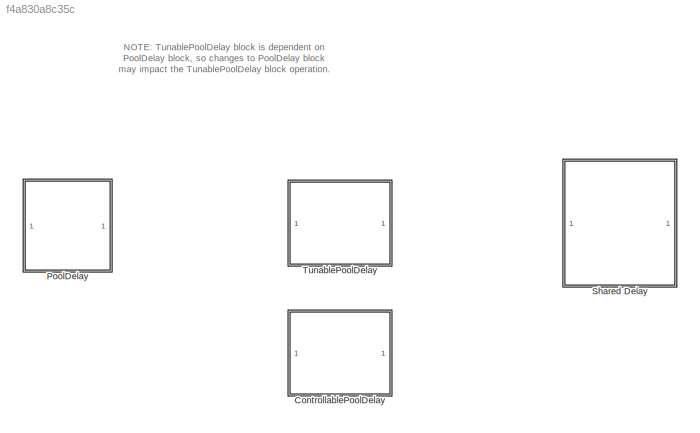
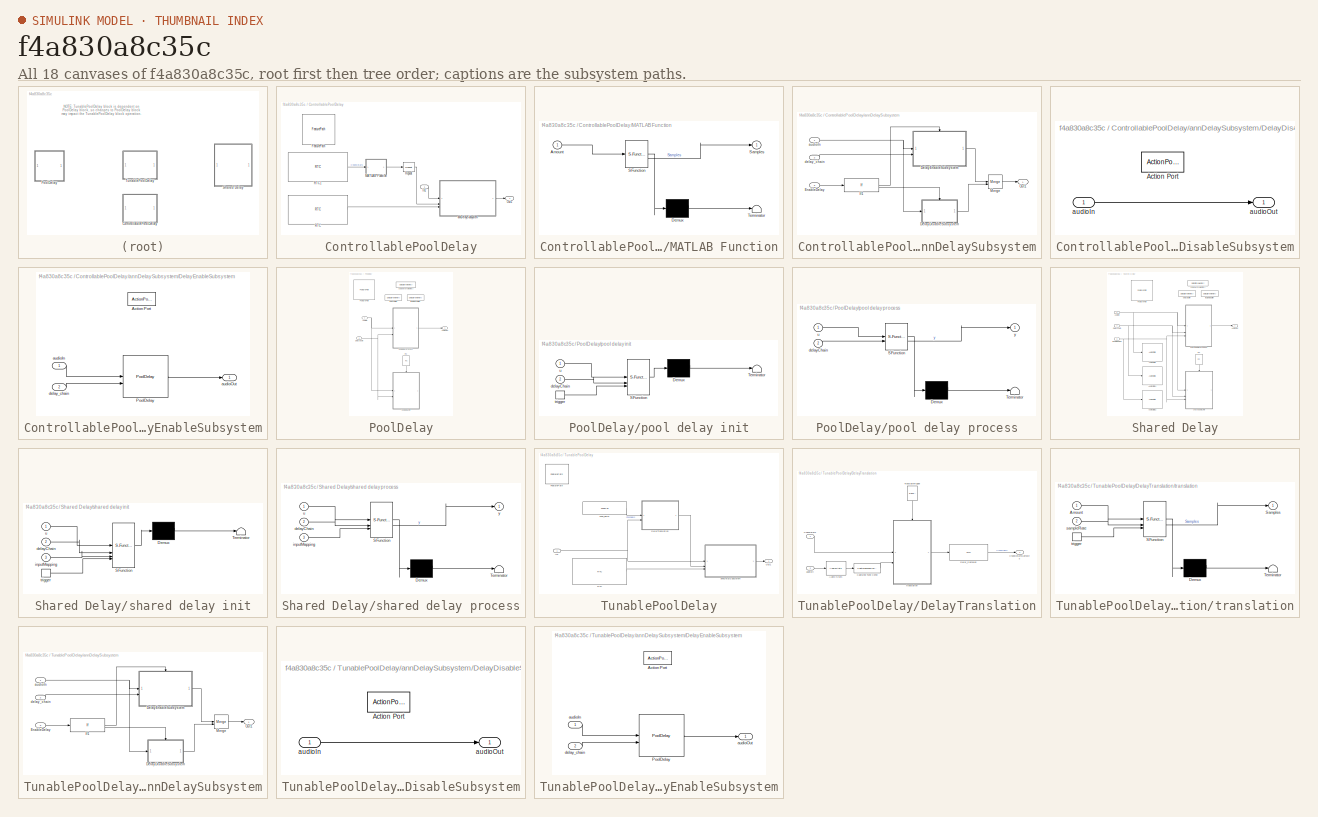
[diagram: thumbnail index - all 18 canvases of the model, root first then tree order]
MODEL slx_f4a830a8c35c
KIND library
CONFIG AbsTol = auto
CONFIG EnableMultiTasking = off
CONFIG FixedStep = auto
CONFIG MaxStep = auto
CONFIG MinStep = auto
CONFIG RelTol = 1e-3
CONFIG SampleTimeConstraint = Unconstrained
CONFIG SolverName = VariableStepAuto
CONFIG StartTime = 0.0
CONFIG StopTime = 10.0
BLOCK [SubSystem] ControllablePoolDelay
BLOCK [Reference] ControllablePoolDelay/FeaturePath  REF=FeaturePath/FeaturePath
  SourceBlock = FeaturePath/FeaturePath
  SourceProductName = Bose Talaria
  SourceType = Talaria Feature Path
BLOCK [Inport] ControllablePoolDelay/In1
BLOCK [SubSystem] ControllablePoolDelay/MATLAB Function
  ErrorFcn = Stateflow.Translate.translate
  PermitHierarchicalResolution = ExplicitOnly
  SFBlockType = MATLAB Function
  TreatAsAtomicUnit = on
BLOCK [Demux] ControllablePoolDelay/MATLAB Function/ Demux 
  Outputs = 1
BLOCK [S-Function] ControllablePoolDelay/MATLAB Function/ SFunction 
  EnableBusSupport = off
  FunctionName = sf_sfun
  Parameters = maxTotalDelay,numChannels
  PortCounts = [1 2]
  SFcnIsStateOwnerBlock = off
  SFunctionDeploymentMode = off
  Tag = Stateflow S-Function 5
BLOCK [Terminator] ControllablePoolDelay/MATLAB Function/ Terminator 
BLOCK [Inport] ControllablePoolDelay/MATLAB Function/Amount
BLOCK [Outport] ControllablePoolDelay/MATLAB Function/Samples
BLOCK [Outport] ControllablePoolDelay/Out1
  VectorParamsAs1DForOutWhenUnconnected = off
BLOCK [Reference] ControllablePoolDelay/RTC  REF=RTC/RTC
  SourceBlock = RTC/RTC
  SourceProductName = Bose Talaria
  SourceType = Talaria RTC Receive
BLOCK [Reference] ControllablePoolDelay/RTC1  REF=RTC/RTC
  SourceBlock = RTC/RTC
  SourceProductName = Bose Talaria
  SourceType = Talaria RTC Receive
BLOCK [Reference] ControllablePoolDelay/Repeat  REF=dspsigops/Repeat
  SourceBlock = dspsigops/Repeat
  SourceType = Repeat
  UserDataPersistent = on
BLOCK [SubSystem] ControllablePoolDelay/annDelaySubsystem
BLOCK [SubSystem] ControllablePoolDelay/annDelaySubsystem/DelayDisableSubsystem
  TreatAsAtomicUnit = on
BLOCK [ActionPort] ControllablePoolDelay/annDelaySubsystem/DelayDisableSubsystem/Action Port
BLOCK [Inport] ControllablePoolDelay/annDelaySubsystem/DelayDisableSubsystem/audioIn
BLOCK [Outport] ControllablePoolDelay/annDelaySubsystem/DelayDisableSubsystem/audioOut
  VectorParamsAs1DForOutWhenUnconnected = off
BLOCK [SubSystem] ControllablePoolDelay/annDelaySubsystem/DelayEnableSubsystem
  TreatAsAtomicUnit = on
BLOCK [ActionPort] ControllablePoolDelay/annDelaySubsystem/DelayEnableSubsystem/Action Port
BLOCK [Reference] ControllablePoolDelay/annDelaySubsystem/DelayEnableSubsystem/PoolDelay  REF=$bdroot/PoolDelay
  SourceBlock = $bdroot/PoolDelay
  SourceType = Bose Pool Delay
BLOCK [Inport] ControllablePoolDelay/annDelaySubsystem/DelayEnableSubsystem/audioIn
BLOCK [Outport] ControllablePoolDelay/annDelaySubsystem/DelayEnableSubsystem/audioOut
  VectorParamsAs1DForOutWhenUnconnected = off
BLOCK [Inport] ControllablePoolDelay/annDelaySubsystem/DelayEnableSubsystem/delay_chain
  Port = 2
BLOCK [Inport] ControllablePoolDelay/annDelaySubsystem/EnableDelay
  Port = 3
BLOCK [If] ControllablePoolDelay/annDelaySubsystem/If1
  IfExpression = u1 ~= 0
BLOCK [Merge] ControllablePoolDelay/annDelaySubsystem/Merge
BLOCK [Outport] ControllablePoolDelay/annDelaySubsystem/Out1
  VectorParamsAs1DForOutWhenUnconnected = off
BLOCK [Inport] ControllablePoolDelay/annDelaySubsystem/audioIn
BLOCK [Inport] ControllablePoolDelay/annDelaySubsystem/delay_chain
  Port = 2
BLOCK [SubSystem] PoolDelay
BLOCK [Inport] PoolDelay/Audio In
BLOCK [Outport] PoolDelay/Audio Out
  VectorParamsAs1DForOutWhenUnconnected = off
BLOCK [Inport] PoolDelay/DelayChain
  OutDataTypeStr = uint32
  Port = 2
  PortDimensions = [1, numChannels]
BLOCK [Reference] PoolDelay/FeaturePath  REF=FeaturePath/FeaturePath
  SourceBlock = FeaturePath/FeaturePath
  SourceProductName = Bose Talaria
  SourceType = Talaria Feature Path
BLOCK [Reference] PoolDelay/ITC  REF=ITC/ITC
  NameLocation = left
  SourceBlock = ITC/ITC
  SourceProductName = Bose Talaria
  SourceType = Talaria Initialization Trigger Control
BLOCK [DataStoreMemory] PoolDelay/codeWorkMemory
  DataStoreName = codeWorkMemory
  EmbeddedSignalClassName = Blocklib.Signal
  InitialValue = zeros(1,codeWorkMemorySize)
  OutDataTypeStr = uint32
  ShowAdditionalParam = off
  SignalType = real
  WriteAfterWriteMsg = warning
BLOCK [DataStoreMemory] PoolDelay/delayBuffer
  DataStoreName = delayBuffer
  EmbeddedSignalClassName = Blocklib.Signal
  InitialValue = zeros(totalDelayBufferSize,1)
  OutDataTypeStr = single
  ReadBeforeWriteMsg = warning
  ShowAdditionalParam = off
  SignalType = real
  WriteAfterReadMsg = warning
  WriteAfterWriteMsg = warning
BLOCK [DataStoreMemory] PoolDelay/fastDelayBuffer
  DataStoreName = fastDelayBuffer
  EmbeddedSignalClassName = Blocklib.Signal
  InitialValue = zeros(totalFastDelayBufferSize,1)
  OutDataTypeStr = single
  ReadBeforeWriteMsg = warning
  ShowAdditionalParam = off
  SignalType = real
  WriteAfterReadMsg = warning
  WriteAfterWriteMsg = warning
BLOCK [SubSystem] PoolDelay/pool delay init
  ErrorFcn = Stateflow.Translate.translate
  PermitHierarchicalResolution = ExplicitOnly
  RTWFcnName = foo
  RTWFcnNameOpts = User specified
  SFBlockType = MATLAB Function
  TreatAsAtomicUnit = on
BLOCK [Demux] PoolDelay/pool delay init/ Demux 
  Outputs = 1
BLOCK [S-Function] PoolDelay/pool delay init/ SFunction 
  EnableBusSupport = off
  FunctionName = sf_sfun
  Parameters = variantSelect
  PortCounts = [3 1]
  SFcnIsStateOwnerBlock = off
  SFunctionDeploymentMode = off
  Tag = Stateflow S-Function 6
BLOCK [Terminator] PoolDelay/pool delay init/ Terminator 
BLOCK [Inport] PoolDelay/pool delay init/delayChain
  Port = 2
BLOCK [TriggerPort] PoolDelay/pool delay init/trigger
  ShowOutputPort = on
  StatesWhenEnabling = held
  TriggerType = function-call
  VariantControl = (inherit)
BLOCK [Inport] PoolDelay/pool delay init/u
BLOCK [SubSystem] PoolDelay/pool delay process
  ErrorFcn = Stateflow.Translate.translate
  PermitHierarchicalResolution = ExplicitOnly
  SFBlockType = MATLAB Function
  TreatAsAtomicUnit = on
BLOCK [Demux] PoolDelay/pool delay process/ Demux 
  Outputs = 1
BLOCK [S-Function] PoolDelay/pool delay process/ SFunction 
  EnableBusSupport = off
  FunctionName = sf_sfun
  Parameters = variantSelect
  PortCounts = [2 2]
  SFcnIsStateOwnerBlock = off
  SFunctionDeploymentMode = off
  Tag = Stateflow S-Function 8
BLOCK [Terminator] PoolDelay/pool delay process/ Terminator 
BLOCK [Inport] PoolDelay/pool delay process/delayChain
  Port = 2
BLOCK [Inport] PoolDelay/pool delay process/u
BLOCK [Outport] PoolDelay/pool delay process/y
  VectorParamsAs1DForOutWhenUnconnected = off
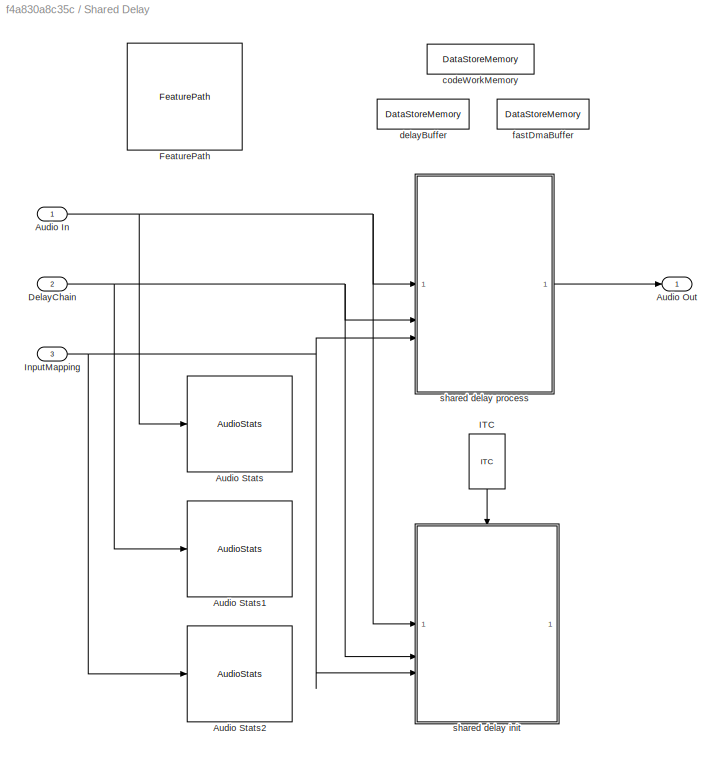
BLOCK [SubSystem] Shared Delay
BLOCK [Inport] Shared Delay/Audio In
BLOCK [Outport] Shared Delay/Audio Out
  VectorParamsAs1DForOutWhenUnconnected = off
BLOCK [Reference] Shared Delay/Audio Stats  REF=AudioStats/AudioStats
  SourceBlock = AudioStats/AudioStats
  SourceProductName = Bose Talaria
  SourceType = Talaria Audio Statistics
BLOCK [Reference] Shared Delay/Audio Stats1  REF=AudioStats/AudioStats
  SourceBlock = AudioStats/AudioStats
  SourceProductName = Bose Talaria
  SourceType = Talaria Audio Statistics
BLOCK [Reference] Shared Delay/Audio Stats2  REF=AudioStats/AudioStats
  SourceBlock = AudioStats/AudioStats
  SourceProductName = Bose Talaria
  SourceType = Talaria Audio Statistics
BLOCK [Inport] Shared Delay/DelayChain
  OutDataTypeStr = int32
  Port = 2
  PortDimensions = [1, numOutputs]
BLOCK [Reference] Shared Delay/FeaturePath  REF=FeaturePath/FeaturePath
  SourceBlock = FeaturePath/FeaturePath
  SourceProductName = Bose Talaria
  SourceType = Talaria Feature Path
BLOCK [Reference] Shared Delay/ITC  REF=ITC/ITC
  NameLocation = left
  SourceBlock = ITC/ITC
  SourceProductName = Bose Talaria
  SourceType = Talaria Initialization Trigger Control
BLOCK [Inport] Shared Delay/InputMapping
  OutDataTypeStr = int32
  Port = 3
  PortDimensions = [1 numOutputs]
BLOCK [DataStoreMemory] Shared Delay/codeWorkMemory
  DataStoreName = codeWorkMemory
  EmbeddedSignalClassName = Blocklib.Signal
  InitialValue = zeros(1,codeWorkMemorySize)
  OutDataTypeStr = uint32
  ShowAdditionalParam = off
  SignalType = real
  WriteAfterWriteMsg = warning
BLOCK [DataStoreMemory] Shared Delay/delayBuffer
  DataStoreName = delayBuffer
  EmbeddedSignalClassName = Blocklib.Signal
  InitialValue = zeros(totalDelayBufferSize,1)
  OutDataTypeStr = single
  ReadBeforeWriteMsg = warning
  ShowAdditionalParam = off
  SignalType = real
  WriteAfterReadMsg = warning
  WriteAfterWriteMsg = warning
BLOCK [DataStoreMemory] Shared Delay/fastDmaBuffer
  DataStoreName = fastDmaBuffer
  EmbeddedSignalClassName = Blocklib.Signal
  InitialValue = zeros(fastDmaBufferSize,1)
  OutDataTypeStr = single
  ReadBeforeWriteMsg = warning
  ShowAdditionalParam = off
  SignalType = real
  WriteAfterReadMsg = warning
  WriteAfterWriteMsg = warning
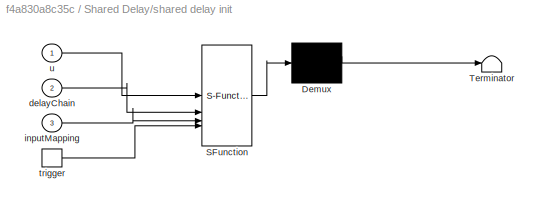
BLOCK [SubSystem] Shared Delay/shared delay init
  ErrorFcn = Stateflow.Translate.translate
  PermitHierarchicalResolution = ExplicitOnly
  RTWFcnName = foo
  RTWFcnNameOpts = User specified
  SFBlockType = MATLAB Function
  TreatAsAtomicUnit = on
BLOCK [Demux] Shared Delay/shared delay init/ Demux 
  Outputs = 1
BLOCK [S-Function] Shared Delay/shared delay init/ SFunction 
  EnableBusSupport = off
  FunctionName = sf_sfun
  PortCounts = [4 1]
  SFcnIsStateOwnerBlock = off
  SFunctionDeploymentMode = off
  Tag = Stateflow S-Function 3
BLOCK [Terminator] Shared Delay/shared delay init/ Terminator 
BLOCK [Inport] Shared Delay/shared delay init/delayChain
  Port = 2
BLOCK [Inport] Shared Delay/shared delay init/inputMapping
  Port = 3
BLOCK [TriggerPort] Shared Delay/shared delay init/trigger
  ShowOutputPort = on
  StatesWhenEnabling = held
  TriggerType = function-call
  VariantControl = (inherit)
BLOCK [Inport] Shared Delay/shared delay init/u
BLOCK [SubSystem] Shared Delay/shared delay process
  ErrorFcn = Stateflow.Translate.translate
  PermitHierarchicalResolution = ExplicitOnly
  SFBlockType = MATLAB Function
  TreatAsAtomicUnit = on
BLOCK [Demux] Shared Delay/shared delay process/ Demux 
  Outputs = 1
BLOCK [S-Function] Shared Delay/shared delay process/ SFunction 
  EnableBusSupport = off
  FunctionName = sf_sfun
  PortCounts = [3 2]
  SFcnIsStateOwnerBlock = off
  SFunctionDeploymentMode = off
  Tag = Stateflow S-Function 4
BLOCK [Terminator] Shared Delay/shared delay process/ Terminator 
BLOCK [Inport] Shared Delay/shared delay process/delayChain
  Port = 2
BLOCK [Inport] Shared Delay/shared delay process/inputMapping
  Port = 3
BLOCK [Inport] Shared Delay/shared delay process/u
BLOCK [Outport] Shared Delay/shared delay process/y
  VectorParamsAs1DForOutWhenUnconnected = off
BLOCK [SubSystem] TunablePoolDelay
BLOCK [SubSystem] TunablePoolDelay/DelayTranslation
BLOCK [Reference] TunablePoolDelay/DelayTranslation/Audio Stats  REF=AudioStats/AudioStats
  SourceBlock = AudioStats/AudioStats
  SourceProductName = Bose Talaria
  SourceType = Talaria Audio Statistics
BLOCK [Reference] TunablePoolDelay/DelayTranslation/Captured Tune Const  REF=TuneVar/CapturedTuneConst
  SourceBlock = TuneVar/CapturedTuneConst
  SourceProductName = Bose Talaria
  SourceType = Talaria Captured Constant
BLOCK [Inport] TunablePoolDelay/DelayTranslation/ChanDelays
BLOCK [Outport] TunablePoolDelay/DelayTranslation/ChanDelaysSamples
  VectorParamsAs1DForOutWhenUnconnected = off
BLOCK [Reference] TunablePoolDelay/DelayTranslation/Delay_Samples  REF=TOP/TOP
  SourceBlock = TOP/TOP
  SourceProductName = Bose Talaria
  SourceType = Talaria Target Overlay Parameter
BLOCK [Reference] TunablePoolDelay/DelayTranslation/TranslateTrigger  REF=TuneVar/TranslateTrigger
  NameLocation = left
  SourceBlock = TuneVar/TranslateTrigger
  SourceProductName = Bose Talaria
  SourceType = Talaria Translate Trigger
BLOCK [Inport] TunablePoolDelay/DelayTranslation/audioIn
  Port = 2
BLOCK [SubSystem] TunablePoolDelay/DelayTranslation/translation
  ErrorFcn = Stateflow.Translate.translate
  PermitHierarchicalResolution = ExplicitOnly
  SFBlockType = MATLAB Function
  TreatAsAtomicUnit = on
BLOCK [Demux] TunablePoolDelay/DelayTranslation/translation/ Demux 
  Outputs = 1
BLOCK [S-Function] TunablePoolDelay/DelayTranslation/translation/ SFunction 
  EnableBusSupport = off
  FunctionName = sf_sfun
  Parameters = delayType,maxTotalDelay
  PortCounts = [3 2]
  SFcnIsStateOwnerBlock = off
  SFunctionDeploymentMode = off
  Tag = Stateflow S-Function 2
BLOCK [Terminator] TunablePoolDelay/DelayTranslation/translation/ Terminator 
BLOCK [Inport] TunablePoolDelay/DelayTranslation/translation/Amount
BLOCK [Outport] TunablePoolDelay/DelayTranslation/translation/Samples
  VectorParamsAs1DForOutWhenUnconnected = off
BLOCK [Inport] TunablePoolDelay/DelayTranslation/translation/sampleRate
  Port = 2
BLOCK [TriggerPort] TunablePoolDelay/DelayTranslation/translation/trigger
  ShowOutputPort = on
  StatesWhenEnabling = held
  TriggerType = function-call
  VariantControl = Variant
BLOCK [Reference] TunablePoolDelay/FeaturePath  REF=FeaturePath/FeaturePath
  SourceBlock = FeaturePath/FeaturePath
  SourceProductName = Bose Talaria
  SourceType = Talaria Feature Path
BLOCK [Inport] TunablePoolDelay/In1
BLOCK [Outport] TunablePoolDelay/Out1
  VectorParamsAs1DForOutWhenUnconnected = off
BLOCK [Reference] TunablePoolDelay/RTC  REF=RTC/RTC
  SourceBlock = RTC/RTC
  SourceProductName = Bose Talaria
  SourceType = Talaria RTC Receive
BLOCK [Reference] TunablePoolDelay/Tune_delay  REF=TuneVar/TuneVar
  SourceBlock = TuneVar/TuneVar
  SourceProductName = Bose Talaria
  SourceType = Talaria Tune Variable
BLOCK [SubSystem] TunablePoolDelay/annDelaySubsystem
BLOCK [SubSystem] TunablePoolDelay/annDelaySubsystem/DelayDisableSubsystem
  TreatAsAtomicUnit = on
BLOCK [ActionPort] TunablePoolDelay/annDelaySubsystem/DelayDisableSubsystem/Action Port
BLOCK [Inport] TunablePoolDelay/annDelaySubsystem/DelayDisableSubsystem/audioIn
BLOCK [Outport] TunablePoolDelay/annDelaySubsystem/DelayDisableSubsystem/audioOut
  VectorParamsAs1DForOutWhenUnconnected = off
BLOCK [SubSystem] TunablePoolDelay/annDelaySubsystem/DelayEnableSubsystem
  TreatAsAtomicUnit = on
BLOCK [ActionPort] TunablePoolDelay/annDelaySubsystem/DelayEnableSubsystem/Action Port
BLOCK [Reference] TunablePoolDelay/annDelaySubsystem/DelayEnableSubsystem/PoolDelay  REF=$bdroot/PoolDelay
  SourceBlock = $bdroot/PoolDelay
  SourceType = Bose Pool Delay
BLOCK [Inport] TunablePoolDelay/annDelaySubsystem/DelayEnableSubsystem/audioIn
BLOCK [Outport] TunablePoolDelay/annDelaySubsystem/DelayEnableSubsystem/audioOut
  VectorParamsAs1DForOutWhenUnconnected = off
BLOCK [Inport] TunablePoolDelay/annDelaySubsystem/DelayEnableSubsystem/delay_chain
  Port = 2
BLOCK [Inport] TunablePoolDelay/annDelaySubsystem/EnableDelay
  Port = 3
BLOCK [If] TunablePoolDelay/annDelaySubsystem/If1
  IfExpression = u1 ~= 0
BLOCK [Merge] TunablePoolDelay/annDelaySubsystem/Merge
BLOCK [Outport] TunablePoolDelay/annDelaySubsystem/Out1
  VectorParamsAs1DForOutWhenUnconnected = off
BLOCK [Inport] TunablePoolDelay/annDelaySubsystem/audioIn
BLOCK [Inport] TunablePoolDelay/annDelaySubsystem/delay_chain
  Port = 2
ANNOTATION (root): NOTE: TunablePoolDelay block is dependent on PoolDelay block, so changes to PoolDelay block may impact the TunablePoolDelay block operation.
CHART TunablePoolDelay/DelayTranslation/translation states=1 transitions=1
  STATE_LABEL 'eML_blk_kernel()'
  STATE_LABEL 'SCRIPT:\nfunction Samples = fcn(Amount, sampleRate, delayType, maxTotalDelay)\n\nif (delayType == 1) % delay in samples\n    Samples = uint32(ceil(Amount.Value));\nelse % delay in milliseconds\n    Samples = uint32(ceil(Amount.Value * 1e-3 * sampleRate));\nend\n\n% Check if Channel Delay is greater than max allowed pool delay\nchanDelay = uint32(sum(Samples));\nif (chanDelay > maxTotalDelay)\n    TranslateErr...<+52ch>'
CHART Shared Delay/shared delay init states=1 transitions=1
  STATE_LABEL 'eML_blk_kernel()'
  STATE_LABEL 'SCRIPT:\nfunction shared_delay_init(u, delayChain, inputMapping)\n% Shared delay function provides multiple delay line tap outputs for each \n% input channel. \n% \n% Parameters:\n%   u:               Input channels [frame size x number of inputs]\n%   delayChain:      Delay in samples for each channel [1 x number of outputs]\n%   inputMapping:    Zero-based input mapping for each filter [1 x number of ou...<+2254ch>'
CHART Shared Delay/shared delay process states=1 transitions=1
  STATE_LABEL 'eML_blk_kernel()'
  STATE_LABEL 'SCRIPT:\nfunction y = shared_delay_process(u, delayChain, inputMapping)\n% Shared delay function provides multiple delay line tap outputs for each \n% input channel.   \n%\n% Parameters:\n%   u:              Input channels [frame size x number of inputs]\n%   delayChain:     Delay in samples for each channel [1 x number of outputs]\n%   inputMapping:   Zero-based input mapping for each filter [1 x number ...<+1084ch>'
CHART ControllablePoolDelay/MATLAB Function states=1 transitions=1
  STATE_LABEL 'eML_blk_kernel()'
  STATE_LABEL 'SCRIPT:\nfunction Samples = fcn(Amount, maxTotalDelay, numChannels)\n\n% Check if Channel Delay is greater than max allowed pool delay\nif (Amount*numChannels > maxTotalDelay)\n    Amount = uint32(floor(maxTotalDelay/numChannels));\nend\nSamples = Amount;'
CHART PoolDelay/pool delay init states=1 transitions=1
  STATE_LABEL 'eML_blk_kernel()'
  STATE_LABEL 'SCRIPT:\nfunction pool_delay_init(u, delayChain, variantSelect)\n\n% Pool delay function provides delay lines for N channels.  Core\n% implementation provides delay of any positive integer value.  MDMA\n% implementation provides integer value delays of a frame or greater. \n% \n% Parameters:\n%   u:              Input channels [frame size x number of inputs]\n%   delayChain:     Delay in samples for each c...<+3608ch>'
CHART PoolDelay/pool delay process states=1 transitions=1
  STATE_LABEL 'eML_blk_kernel()'
  STATE_LABEL 'SCRIPT:\nfunction y = pool_delay_process(u, delayChain, variantSelect)\n% Pool delay function provides delay lines for N channels.  Core\n% implementation provides delay of any positive integer value.  MDMA\n% implementation provides integer value delays of a frame or greater. \n%\n% Parameters:\n%   u:              Input channels [frame size x number of inputs]\n%   delayChain:     Delay in samples for e...<+2615ch>'
CHART  states=0 transitions=0
CHART  states=0 transitions=0
CHART  states=0 transitions=0
CHART  states=0 transitions=0
CHART  states=0 transitions=0
CHART  states=0 transitions=0
